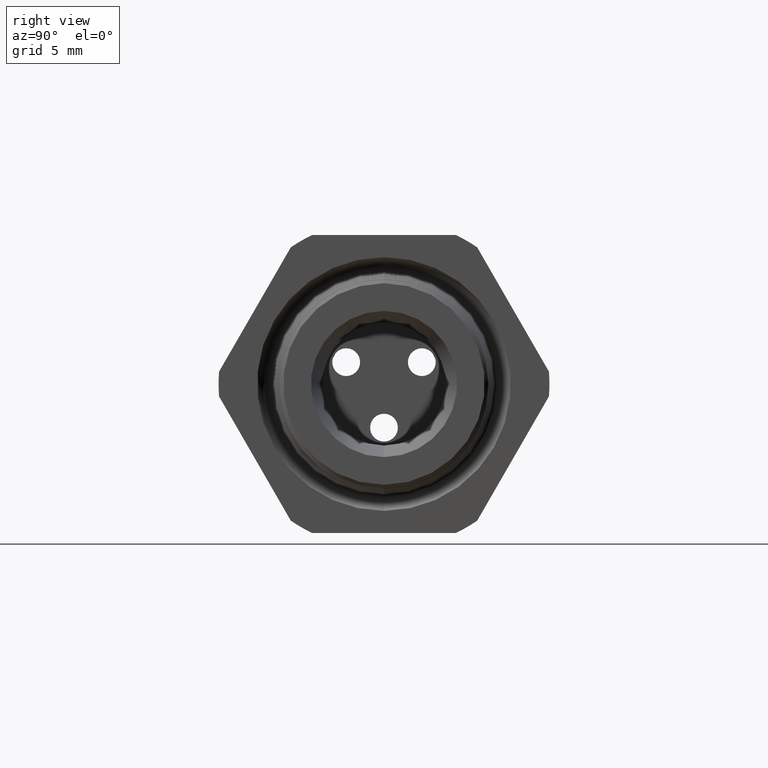
[diagram: clean part render]
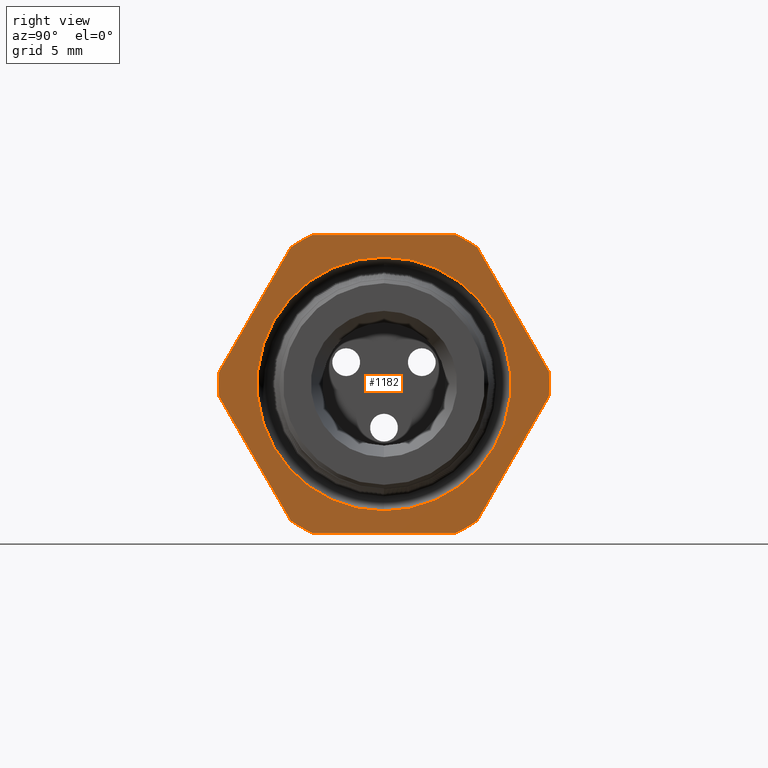
[diagram: same view with one face highlighted and labeled with its STEP entity id]
A machine part, right view. The second image highlights one B-rep face of the part: STEP entity #1182.
In plain terms, the highlighted planar face has unit normal (1, 0, 0).
Its self-contained STEP definition (entity closure, byte-faithful):
#1110 = EDGE_CURVE ( 'NONE', #1193, #1166, #3764, .T. ) ;
#1122 = EDGE_LOOP ( 'NONE', ( #1183, #1185 ) ) ;
#1152 = VERTEX_POINT ( 'NONE', #3847 ) ;
#1153 = ORIENTED_EDGE ( 'NONE', *, *, #1154, .T. ) ;
#1154 = EDGE_CURVE ( 'NONE', #1152, #1155, #3899, .T. ) ;
#1155 = VERTEX_POINT ( 'NONE', #3895 ) ;
#1156 = ORIENTED_EDGE ( 'NONE', *, *, #1157, .T. ) ;
#1157 = EDGE_CURVE ( 'NONE', #1155, #1158, #3894, .T. ) ;
#1158 = VERTEX_POINT ( 'NONE', #3889 ) ;
#1159 = ORIENTED_EDGE ( 'NONE', *, *, #1160, .T. ) ;
#1160 = EDGE_CURVE ( 'NONE', #1158, #1161, #3888, .T. ) ;
#1161 = VERTEX_POINT ( 'NONE', #3884 ) ;
#1162 = ORIENTED_EDGE ( 'NONE', *, *, #1163, .T. ) ;
#1163 = EDGE_CURVE ( 'NONE', #1161, #1189, #3883, .T. ) ;
#1166 = VERTEX_POINT ( 'NONE', #3872 ) ;
#1167 = ORIENTED_EDGE ( 'NONE', *, *, #1168, .T. ) ;
#1168 = EDGE_CURVE ( 'NONE', #1166, #1169, #3938, .T. ) ;
#1169 = VERTEX_POINT ( 'NONE', #3933 ) ;
#1170 = ORIENTED_EDGE ( 'NONE', *, *, #1171, .T. ) ;
#1171 = EDGE_CURVE ( 'NONE', #1169, #1172, #3932, .T. ) ;
#1172 = VERTEX_POINT ( 'NONE', #3928 ) ;
#1173 = ORIENTED_EDGE ( 'NONE', *, *, #1174, .T. ) ;
#1174 = EDGE_CURVE ( 'NONE', #1172, #1175, #3927, .T. ) ;
#1175 = VERTEX_POINT ( 'NONE', #3922 ) ;
#1176 = ORIENTED_EDGE ( 'NONE', *, *, #1177, .T. ) ;
#1177 = EDGE_CURVE ( 'NONE', #1175, #1178, #3921, .T. ) ;
#1178 = VERTEX_POINT ( 'NONE', #3917 ) ;
#1179 = ORIENTED_EDGE ( 'NONE', *, *, #1180, .T. ) ;
#1180 = EDGE_CURVE ( 'NONE', #1178, #1152, #3916, .T. ) ;
#1182 = ADVANCED_FACE ( 'NONE', ( #3905, #3907 ), #3906, .T. ) ;
#1183 = ORIENTED_EDGE ( 'NONE', *, *, #1184, .F. ) ;
#1184 = EDGE_CURVE ( 'NONE', #1522, #1499, #3968, .T. ) ;
#1185 = ORIENTED_EDGE ( 'NONE', *, *, #1521, .F. ) ;
#1186 = EDGE_LOOP ( 'NONE', ( #1187, #1191, #1194, #1167, #1170, #1173, #1176, #1179, #1153, #1156, #1159, #1162 ) ) ;
#1187 = ORIENTED_EDGE ( 'NONE', *, *, #1188, .T. ) ;
#1188 = EDGE_CURVE ( 'NONE', #1189, #1190, #3963, .T. ) ;
#1189 = VERTEX_POINT ( 'NONE', #3959 ) ;
#1190 = VERTEX_POINT ( 'NONE', #3958 ) ;
#1191 = ORIENTED_EDGE ( 'NONE', *, *, #1192, .T. ) ;
#1192 = EDGE_CURVE ( 'NONE', #1190, #1193, #3957, .T. ) ;
#1193 = VERTEX_POINT ( 'NONE', #3952 ) ;
#1194 = ORIENTED_EDGE ( 'NONE', *, *, #1110, .T. ) ;
#1499 = VERTEX_POINT ( 'NONE', #4506 ) ;
#1521 = EDGE_CURVE ( 'NONE', #1499, #1522, #4540, .T. ) ;
#1522 = VERTEX_POINT ( 'NONE', #4535 ) ;
#3761 = DIRECTION ( 'NONE',  ( 0.0000000000000000000, -0.4999999999999998900, 0.8660254037844386000 ) ) ;
#3762 = VECTOR ( 'NONE', #3761, 39.37007874015748100 ) ;
#3763 = CARTESIAN_POINT ( 'NONE',  ( -0.3100000000000000000, 0.5122595264191646100, -0.1372595264191644500 ) ) ;
#3764 = LINE ( 'NONE', #3763, #3762 ) ;
#3847 = CARTESIAN_POINT ( 'NONE',  ( -0.3100000000000000000, -0.4150909474475088000, -0.03104138925901237000 ) ) ;
#3872 = CARTESIAN_POINT ( 'NONE',  ( -0.3100000000000000000, 0.2344281053908206000, 0.3439586107409877100 ) ) ;
#3879 = DIRECTION ( 'NONE',  ( 0.0000000000000000000, 0.0000000000000000000, -1.000000000000000000 ) ) ;
#3880 = DIRECTION ( 'NONE',  ( 1.000000000000000000, 0.0000000000000000000, 0.0000000000000000000 ) ) ;
#3881 = CARTESIAN_POINT ( 'NONE',  ( -0.3100000000000000000, 0.0000000000000000000, 0.0000000000000000000 ) ) ;
#3882 = AXIS2_PLACEMENT_3D ( 'NONE', #3881, #3880, #3879 ) ;
#3883 = CIRCLE ( 'NONE', #3882, 0.4162500000000000100 ) ;
#3884 = CARTESIAN_POINT ( 'NONE',  ( -0.3100000000000000000, 0.1806628420566884800, -0.3750000000000001100 ) ) ;
#3885 = DIRECTION ( 'NONE',  ( 0.0000000000000000000, 1.000000000000000000, 0.0000000000000000000 ) ) ;
#3886 = VECTOR ( 'NONE', #3885, 39.37007874015748100 ) ;
#3887 = CARTESIAN_POINT ( 'NONE',  ( -0.3100000000000000000, 0.7500000000000001100, -0.3750000000000001100 ) ) ;
#3888 = LINE ( 'NONE', #3887, #3886 ) ;
#3889 = CARTESIAN_POINT ( 'NONE',  ( -0.3100000000000000000, -0.1806628420566883900, -0.3750000000000001100 ) ) ;
#3890 = DIRECTION ( 'NONE',  ( 0.0000000000000000000, 0.0000000000000000000, -1.000000000000000000 ) ) ;
#3891 = DIRECTION ( 'NONE',  ( 1.000000000000000000, 0.0000000000000000000, 0.0000000000000000000 ) ) ;
#3892 = CARTESIAN_POINT ( 'NONE',  ( -0.3100000000000000000, 0.0000000000000000000, 0.0000000000000000000 ) ) ;
#3893 = AXIS2_PLACEMENT_3D ( 'NONE', #3892, #3891, #3890 ) ;
#3894 = CIRCLE ( 'NONE', #3893, 0.4162500000000000100 ) ;
#3895 = CARTESIAN_POINT ( 'NONE',  ( -0.3100000000000000000, -0.2344281053908202100, -0.3439586107409880500 ) ) ;
#3896 = DIRECTION ( 'NONE',  ( 0.0000000000000000000, 0.5000000000000003300, -0.8660254037844383700 ) ) ;
#3897 = VECTOR ( 'NONE', #3896, 39.37007874015748100 ) ;
#3898 = CARTESIAN_POINT ( 'NONE',  ( -0.3100000000000000000, -0.1372595264191642800, -0.5122595264191648300 ) ) ;
#3899 = LINE ( 'NONE', #3898, #3897 ) ;
#3905 = FACE_BOUND ( 'NONE', #1122, .T. ) ;
#3906 = PLANE ( 'NONE',  #3972 ) ;
#3907 = FACE_OUTER_BOUND ( 'NONE', #1186, .T. ) ;
#3912 = DIRECTION ( 'NONE',  ( 0.0000000000000000000, 0.0000000000000000000, -1.000000000000000000 ) ) ;
#3913 = DIRECTION ( 'NONE',  ( 1.000000000000000000, 0.0000000000000000000, 0.0000000000000000000 ) ) ;
#3914 = CARTESIAN_POINT ( 'NONE',  ( -0.3100000000000000000, 0.0000000000000000000, 0.0000000000000000000 ) ) ;
#3915 = AXIS2_PLACEMENT_3D ( 'NONE', #3914, #3913, #3912 ) ;
#3916 = CIRCLE ( 'NONE', #3915, 0.4162500000000000100 ) ;
#3917 = CARTESIAN_POINT ( 'NONE',  ( -0.3100000000000000000, -0.4150909474475088000, 0.03104138925901241800 ) ) ;
#3918 = DIRECTION ( 'NONE',  ( 0.0000000000000000000, -0.4999999999999998300, -0.8660254037844386000 ) ) ;
#3919 = VECTOR ( 'NONE', #3918, 39.37007874015748900 ) ;
#3920 = CARTESIAN_POINT ( 'NONE',  ( -0.3100000000000000000, -0.1372595264191648300, 0.5122595264191645000 ) ) ;
#3921 = LINE ( 'NONE', #3920, #3919 ) ;
#3922 = CARTESIAN_POINT ( 'NONE',  ( -0.3100000000000000000, -0.2344281053908205100, 0.3439586107409878200 ) ) ;
#3923 = DIRECTION ( 'NONE',  ( 0.0000000000000000000, 0.0000000000000000000, -1.000000000000000000 ) ) ;
#3924 = DIRECTION ( 'NONE',  ( 1.000000000000000000, 0.0000000000000000000, 0.0000000000000000000 ) ) ;
#3925 = CARTESIAN_POINT ( 'NONE',  ( -0.3100000000000000000, 0.0000000000000000000, 0.0000000000000000000 ) ) ;
#3926 = AXIS2_PLACEMENT_3D ( 'NONE', #3925, #3924, #3923 ) ;
#3927 = CIRCLE ( 'NONE', #3926, 0.4162500000000000100 ) ;
#3928 = CARTESIAN_POINT ( 'NONE',  ( -0.3100000000000000000, -0.1806628420566886700, 0.3749999999999999400 ) ) ;
#3929 = DIRECTION ( 'NONE',  ( 0.0000000000000000000, -1.000000000000000000, 0.0000000000000000000 ) ) ;
#3930 = VECTOR ( 'NONE', #3929, 39.37007874015748100 ) ;
#3931 = CARTESIAN_POINT ( 'NONE',  ( -0.3100000000000000000, 0.7500000000000001100, 0.3749999999999999400 ) ) ;
#3932 = LINE ( 'NONE', #3931, #3930 ) ;
#3933 = CARTESIAN_POINT ( 'NONE',  ( -0.3100000000000000000, 0.1806628420566887000, 0.3749999999999999400 ) ) ;
#3934 = DIRECTION ( 'NONE',  ( 0.0000000000000000000, 0.0000000000000000000, -1.000000000000000000 ) ) ;
#3935 = DIRECTION ( 'NONE',  ( 1.000000000000000000, 0.0000000000000000000, 0.0000000000000000000 ) ) ;
#3936 = CARTESIAN_POINT ( 'NONE',  ( -0.3100000000000000000, 0.0000000000000000000, 0.0000000000000000000 ) ) ;
#3937 = AXIS2_PLACEMENT_3D ( 'NONE', #3936, #3935, #3934 ) ;
#3938 = CIRCLE ( 'NONE', #3937, 0.4162499999999999500 ) ;
#3952 = CARTESIAN_POINT ( 'NONE',  ( -0.3100000000000000000, 0.4150909474475088000, 0.03104138925901233200 ) ) ;
#3953 = DIRECTION ( 'NONE',  ( 0.0000000000000000000, 0.0000000000000000000, -1.000000000000000000 ) ) ;
#3954 = DIRECTION ( 'NONE',  ( 1.000000000000000000, 0.0000000000000000000, 0.0000000000000000000 ) ) ;
#3955 = CARTESIAN_POINT ( 'NONE',  ( -0.3100000000000000000, 0.0000000000000000000, 0.0000000000000000000 ) ) ;
#3956 = AXIS2_PLACEMENT_3D ( 'NONE', #3955, #3954, #3953 ) ;
#3957 = CIRCLE ( 'NONE', #3956, 0.4162500000000000100 ) ;
#3958 = CARTESIAN_POINT ( 'NONE',  ( -0.3100000000000000000, 0.4150909474475088000, -0.03104138925901222000 ) ) ;
#3959 = CARTESIAN_POINT ( 'NONE',  ( -0.3100000000000000000, 0.2344281053908202900, -0.3439586107409879900 ) ) ;
#3960 = DIRECTION ( 'NONE',  ( 0.0000000000000000000, 0.5000000000000000000, 0.8660254037844386000 ) ) ;
#3961 = VECTOR ( 'NONE', #3960, 39.37007874015748900 ) ;
#3962 = CARTESIAN_POINT ( 'NONE',  ( -0.3100000000000000000, 0.5122595264191646100, 0.1372595264191644700 ) ) ;
#3963 = LINE ( 'NONE', #3962, #3961 ) ;
#3964 = DIRECTION ( 'NONE',  ( 0.0000000000000000000, 0.0000000000000000000, -1.000000000000000000 ) ) ;
#3965 = DIRECTION ( 'NONE',  ( 1.000000000000000000, 0.0000000000000000000, 0.0000000000000000000 ) ) ;
#3966 = CARTESIAN_POINT ( 'NONE',  ( -0.3100000000000000000, 0.0000000000000000000, 0.0000000000000000000 ) ) ;
#3967 = AXIS2_PLACEMENT_3D ( 'NONE', #3966, #3965, #3964 ) ;
#3968 = CIRCLE ( 'NONE', #3967, 0.3192456312392313900 ) ;
#3969 = DIRECTION ( 'NONE',  ( 0.0000000000000000000, 0.0000000000000000000, -1.000000000000000000 ) ) ;
#3970 = DIRECTION ( 'NONE',  ( 1.000000000000000000, 0.0000000000000000000, 0.0000000000000000000 ) ) ;
#3971 = CARTESIAN_POINT ( 'NONE',  ( -0.3100000000000000000, 0.7500000000000001100, 0.0000000000000000000 ) ) ;
#3972 = AXIS2_PLACEMENT_3D ( 'NONE', #3971, #3970, #3969 ) ;
#4506 = CARTESIAN_POINT ( 'NONE',  ( -0.3100000000000000000, 3.909631404389010100E-017, 0.3192456312392313900 ) ) ;
#4535 = CARTESIAN_POINT ( 'NONE',  ( -0.3100000000000000000, 0.0000000000000000000, -0.3192456312392313900 ) ) ;
#4536 = DIRECTION ( 'NONE',  ( 0.0000000000000000000, 0.0000000000000000000, -1.000000000000000000 ) ) ;
#4537 = DIRECTION ( 'NONE',  ( 1.000000000000000000, 0.0000000000000000000, 0.0000000000000000000 ) ) ;
#4538 = CARTESIAN_POINT ( 'NONE',  ( -0.3100000000000000000, 0.0000000000000000000, 0.0000000000000000000 ) ) ;
#4539 = AXIS2_PLACEMENT_3D ( 'NONE', #4538, #4537, #4536 ) ;
#4540 = CIRCLE ( 'NONE', #4539, 0.3192456312392313900 ) ;